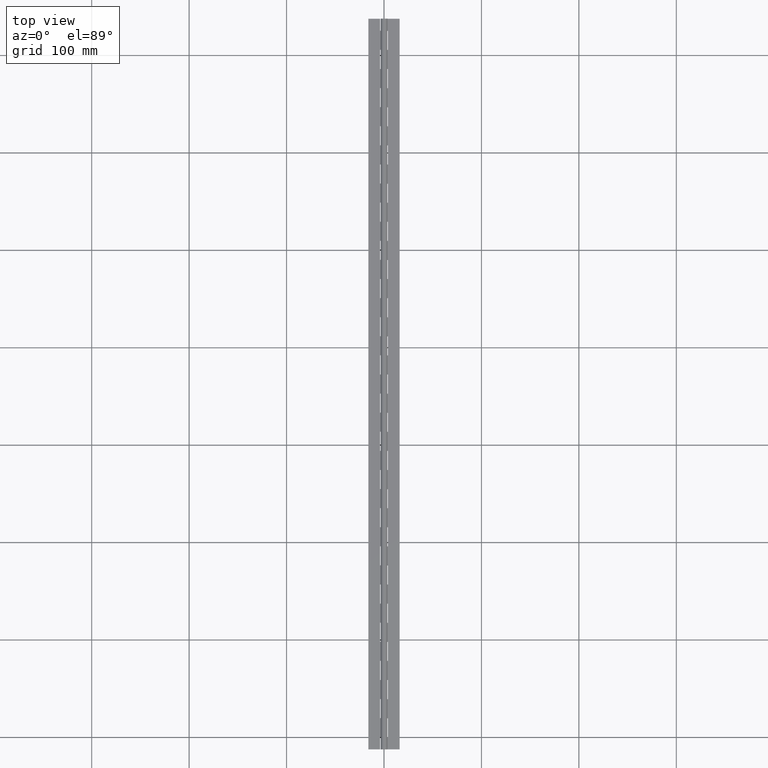
[diagram: clean part render]
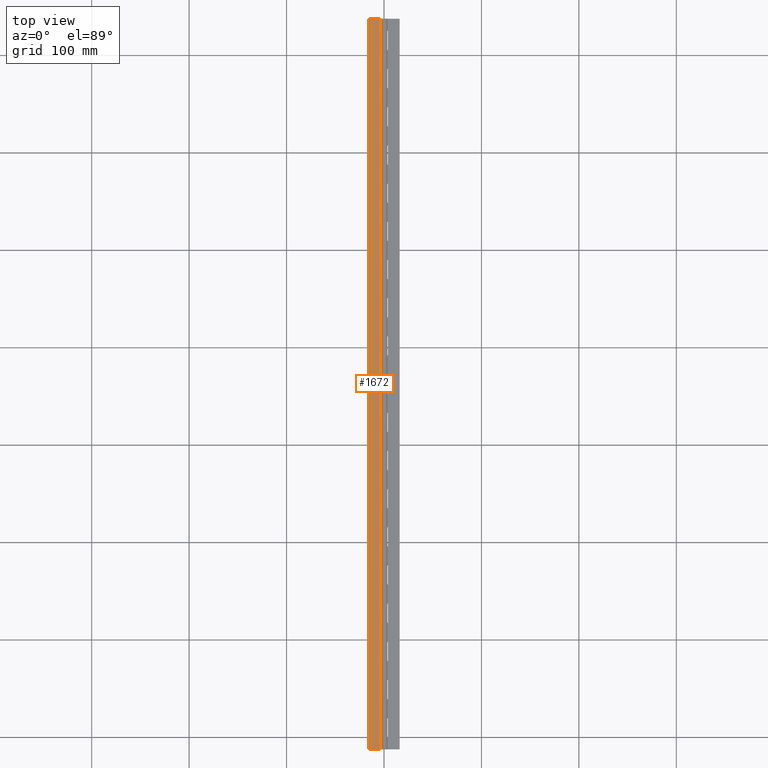
[diagram: same view with one face highlighted and labeled with its STEP entity id]
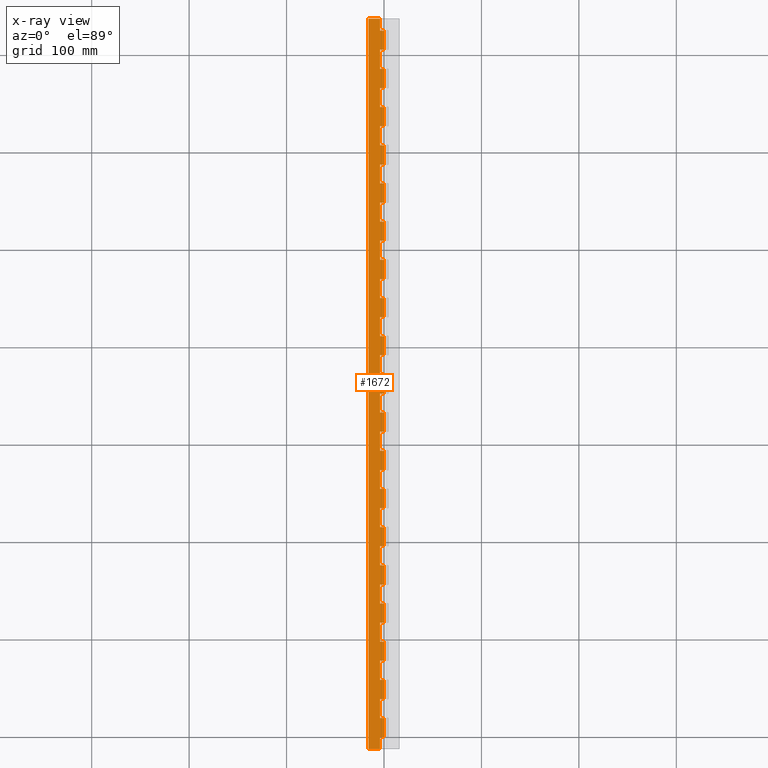
[diagram: x-ray of the same camera — body ghosted, the highlighted face saturated]
A machine part, top view. The second image highlights one B-rep face of the part: STEP entity #1672.
The next image is the same camera in x-ray: the body ghosted, the highlighted face saturated — about 0% of this face is hidden behind the body in this view.
In plain terms, the highlighted planar face has unit normal (-0, 0, -1).
Its self-contained STEP definition (entity closure, byte-faithful):
#2 = CARTESIAN_POINT ( 'NONE',  ( 0.0000000000000000000, 58.79999999999996200, -1.750000000000002400 ) ) ;
#29 = VECTOR ( 'NONE', #565, 1000.000000000000000 ) ;
#36 = LINE ( 'NONE', #8312, #7974 ) ;
#39 = CARTESIAN_POINT ( 'NONE',  ( -3.999999824594459200, 333.2000000000000500, -1.750000000000002200 ) ) ;
#59 = VERTEX_POINT ( 'NONE', #6160 ) ;
#78 = VERTEX_POINT ( 'NONE', #5895 ) ;
#86 = CARTESIAN_POINT ( 'NONE',  ( -3.999999824594461900, 117.6000000000000100, -1.750000000000002200 ) ) ;
#92 = CARTESIAN_POINT ( 'NONE',  ( 0.0000000000000000000, 19.59999999999995200, -1.750000546904256100 ) ) ;
#143 = ORIENTED_EDGE ( 'NONE', *, *, #6968, .T. ) ;
#162 = EDGE_CURVE ( 'NONE', #3038, #737, #7977, .T. ) ;
#251 = CARTESIAN_POINT ( 'NONE',  ( -3.999999824594461900, 156.8000000000000100, -1.750000000000002200 ) ) ;
#276 = EDGE_CURVE ( 'NONE', #1440, #4498, #2618, .T. ) ;
#301 = DIRECTION ( 'NONE',  ( -1.327594496921025700E-016, 1.000000000000000000, 1.619303460211448100E-032 ) ) ;
#308 = DIRECTION ( 'NONE',  ( -1.327594496921025700E-016, 1.000000000000000000, 1.619303460211448100E-032 ) ) ;
#309 = VERTEX_POINT ( 'NONE', #8284 ) ;
#332 = ORIENTED_EDGE ( 'NONE', *, *, #5174, .F. ) ;
#338 = VECTOR ( 'NONE', #3981, 1000.000000000000100 ) ;
#370 = DIRECTION ( 'NONE',  ( -1.327594496921025700E-016, 1.000000000000000000, 1.619303460211448100E-032 ) ) ;
#397 = CARTESIAN_POINT ( 'NONE',  ( 0.0000000000000000000, 352.8000000000000700, -1.750000000000002400 ) ) ;
#401 = EDGE_CURVE ( 'NONE', #870, #3880, #1021, .T. ) ;
#412 = EDGE_CURVE ( 'NONE', #78, #8190, #7867, .T. ) ;
#416 = ORIENTED_EDGE ( 'NONE', *, *, #4105, .F. ) ;
#417 = CARTESIAN_POINT ( 'NONE',  ( 0.0000000000000000000, 39.20000000000001000, -1.750000000000002400 ) ) ;
#418 = EDGE_CURVE ( 'NONE', #7127, #3068, #4220, .T. ) ;
#451 = ORIENTED_EDGE ( 'NONE', *, *, #7435, .T. ) ;
#505 = EDGE_CURVE ( 'NONE', #6313, #8044, #6848, .T. ) ;
#507 = CARTESIAN_POINT ( 'NONE',  ( -3.999999824594459200, 686.0000000000000000, -1.750000000000002200 ) ) ;
#523 = CARTESIAN_POINT ( 'NONE',  ( 2.143125705451388300E-016, 725.2000000000000500, -1.750000000000002400 ) ) ;
#524 = VECTOR ( 'NONE', #6797, 1000.000000000000000 ) ;
#541 = EDGE_CURVE ( 'NONE', #2538, #3606, #1513, .T. ) ;
#542 = ORIENTED_EDGE ( 'NONE', *, *, #1035, .F. ) ;
#562 = VECTOR ( 'NONE', #4045, 1000.000000000000000 ) ;
#564 = VERTEX_POINT ( 'NONE', #3544 ) ;
#565 = DIRECTION ( 'NONE',  ( -0.0000000000000000000, -1.000000000000000000, -0.0000000000000000000 ) ) ;
#580 = EDGE_CURVE ( 'NONE', #1131, #6048, #3003, .T. ) ;
#582 = CARTESIAN_POINT ( 'NONE',  ( 2.143132568272414800E-016, 0.0000000000000000000, -1.750000546904256100 ) ) ;
#605 = VECTOR ( 'NONE', #7972, 1000.000000000000000 ) ;
#608 = DIRECTION ( 'NONE',  ( 1.000000000000000000, 0.0000000000000000000, -1.219727457417876900E-016 ) ) ;
#614 = LINE ( 'NONE', #6228, #1903 ) ;
#635 = EDGE_CURVE ( 'NONE', #1811, #4023, #5637, .T. ) ;
#646 = EDGE_CURVE ( 'NONE', #3606, #5241, #7159, .T. ) ;
#698 = ORIENTED_EDGE ( 'NONE', *, *, #3600, .T. ) ;
#701 = CARTESIAN_POINT ( 'NONE',  ( 0.0000000000000000000, 196.0000000000000600, -1.750000000000002400 ) ) ;
#737 = VERTEX_POINT ( 'NONE', #6079 ) ;
#752 = VECTOR ( 'NONE', #2782, 1000.000000000000000 ) ;
#803 = CARTESIAN_POINT ( 'NONE',  ( -3.999999824594464600, 725.2000000000000500, -1.750000000000002000 ) ) ;
#808 = CARTESIAN_POINT ( 'NONE',  ( 2.143125705451388300E-016, 392.0000000000000600, -1.750000000000002400 ) ) ;
#852 = CARTESIAN_POINT ( 'NONE',  ( 0.0000000000000000000, 450.8000000000000700, -1.750000000000002400 ) ) ;
#864 = DIRECTION ( 'NONE',  ( -1.327594496921025700E-016, 1.000000000000000000, 1.619303460211448100E-032 ) ) ;
#870 = VERTEX_POINT ( 'NONE', #92 ) ;
#876 = DIRECTION ( 'NONE',  ( -0.0000000000000000000, -1.000000000000000000, -0.0000000000000000000 ) ) ;
#885 = EDGE_CURVE ( 'NONE', #3171, #564, #1906, .T. ) ;
#902 = LINE ( 'NONE', #2704, #1112 ) ;
#904 = ORIENTED_EDGE ( 'NONE', *, *, #412, .T. ) ;
#941 = CARTESIAN_POINT ( 'NONE',  ( 0.0000000000000000000, 490.0000000000000600, -1.750000000000002400 ) ) ;
#961 = VERTEX_POINT ( 'NONE', #582 ) ;
#965 = EDGE_CURVE ( 'NONE', #6037, #5995, #4512, .T. ) ;
#981 = ORIENTED_EDGE ( 'NONE', *, *, #4026, .F. ) ;
#986 = VERTEX_POINT ( 'NONE', #1929 ) ;
#995 = DIRECTION ( 'NONE',  ( -1.327594496921025700E-016, 1.000000000000000000, 1.619303460211448100E-032 ) ) ;
#1006 = VECTOR ( 'NONE', #7061, 1000.000000000000000 ) ;
#1009 = EDGE_CURVE ( 'NONE', #3534, #3930, #7560, .T. ) ;
#1015 = ORIENTED_EDGE ( 'NONE', *, *, #1798, .T. ) ;
#1021 = LINE ( 'NONE', #8314, #4414 ) ;
#1030 = ORIENTED_EDGE ( 'NONE', *, *, #4245, .T. ) ;
#1035 = EDGE_CURVE ( 'NONE', #7127, #3955, #902, .T. ) ;
#1052 = LINE ( 'NONE', #5211, #5961 ) ;
#1055 = DIRECTION ( 'NONE',  ( -0.0000000000000000000, -1.000000000000000000, -0.0000000000000000000 ) ) ;
#1076 = VERTEX_POINT ( 'NONE', #3456 ) ;
#1112 = VECTOR ( 'NONE', #2652, 1000.000000000000000 ) ;
#1119 = LINE ( 'NONE', #3864, #5827 ) ;
#1129 = LINE ( 'NONE', #852, #6034 ) ;
#1131 = VERTEX_POINT ( 'NONE', #6020 ) ;
#1141 = CARTESIAN_POINT ( 'NONE',  ( -3.999999824594459200, 646.8000000000000700, -1.750000000000002200 ) ) ;
#1166 = VERTEX_POINT ( 'NONE', #5372 ) ;
#1169 = CARTESIAN_POINT ( 'NONE',  ( 2.143132568272414800E-016, 725.2000000000000500, -1.750000546904256100 ) ) ;
#1181 = CARTESIAN_POINT ( 'NONE',  ( -15.99999982459446300, 725.2000000000000500, -1.750000000000000400 ) ) ;
#1187 = VECTOR ( 'NONE', #6118, 1000.000000000000000 ) ;
#1192 = CARTESIAN_POINT ( 'NONE',  ( 0.0000000000000000000, 0.0000000000000000000, -1.750000000000002400 ) ) ;
#1212 = ORIENTED_EDGE ( 'NONE', *, *, #2205, .T. ) ;
#1220 = LINE ( 'NONE', #417, #2908 ) ;
#1221 = CARTESIAN_POINT ( 'NONE',  ( 2.143125705451388300E-016, 78.40000000000002000, -1.750000000000002400 ) ) ;
#1231 = EDGE_CURVE ( 'NONE', #3880, #986, #2506, .T. ) ;
#1232 = ORIENTED_EDGE ( 'NONE', *, *, #162, .T. ) ;
#1252 = CARTESIAN_POINT ( 'NONE',  ( -3.999999824594459200, 19.60000000000000100, -1.750000000000002200 ) ) ;
#1295 = VERTEX_POINT ( 'NONE', #2467 ) ;
#1315 = VECTOR ( 'NONE', #2664, 1000.000000000000000 ) ;
#1320 = VECTOR ( 'NONE', #2093, 1000.000000000000000 ) ;
#1326 = LINE ( 'NONE', #8058, #1519 ) ;
#1330 = DIRECTION ( 'NONE',  ( -0.0000000000000000000, -1.000000000000000000, -0.0000000000000000000 ) ) ;
#1341 = DIRECTION ( 'NONE',  ( 1.000000000000000000, 0.0000000000000000000, -1.219727457417876900E-016 ) ) ;
#1352 = DIRECTION ( 'NONE',  ( -1.000000000000000000, 0.0000000000000000000, 1.219727457417876900E-016 ) ) ;
#1353 = VECTOR ( 'NONE', #6179, 1000.000000000000000 ) ;
#1374 = DIRECTION ( 'NONE',  ( 1.000000000000000000, 0.0000000000000000000, -1.219727457417876900E-016 ) ) ;
#1388 = CARTESIAN_POINT ( 'NONE',  ( -3.999999824594459200, 58.80000000000000400, -1.750000000000002200 ) ) ;
#1390 = VECTOR ( 'NONE', #864, 1000.000000000000000 ) ;
#1414 = CARTESIAN_POINT ( 'NONE',  ( 0.0000000000000000000, 313.6000000000000200, -1.750000000000002400 ) ) ;
#1428 = ORIENTED_EDGE ( 'NONE', *, *, #5521, .T. ) ;
#1431 = CARTESIAN_POINT ( 'NONE',  ( -3.999999824594461900, 627.2000000000000500, -1.750000000000002200 ) ) ;
#1440 = VERTEX_POINT ( 'NONE', #2282 ) ;
#1442 = DIRECTION ( 'NONE',  ( -1.000000000000000000, 0.0000000000000000000, 1.219727457417876900E-016 ) ) ;
#1446 = CARTESIAN_POINT ( 'NONE',  ( 2.143125705451388300E-016, 588.0000000000001100, -1.750000000000002400 ) ) ;
#1460 = ORIENTED_EDGE ( 'NONE', *, *, #7094, .T. ) ;
#1463 = EDGE_CURVE ( 'NONE', #8218, #4281, #5815, .T. ) ;
#1466 = DIRECTION ( 'NONE',  ( 1.000000000000000000, 0.0000000000000000000, -1.219727457417876900E-016 ) ) ;
#1497 = DIRECTION ( 'NONE',  ( -1.000000000000000000, 0.0000000000000000000, 1.219727457417876900E-016 ) ) ;
#1512 = VECTOR ( 'NONE', #608, 1000.000000000000000 ) ;
#1513 = LINE ( 'NONE', #803, #1320 ) ;
#1519 = VECTOR ( 'NONE', #4840, 1000.000000000000000 ) ;
#1526 = LINE ( 'NONE', #5943, #6451 ) ;
#1544 = LINE ( 'NONE', #2957, #3436 ) ;
#1547 = CARTESIAN_POINT ( 'NONE',  ( 2.143125705451388300E-016, 176.4000000000000100, -1.750000000000002400 ) ) ;
#1565 = CARTESIAN_POINT ( 'NONE',  ( 2.143125705451388300E-016, 235.2000000000000700, -1.750000000000002400 ) ) ;
#1573 = CARTESIAN_POINT ( 'NONE',  ( -3.999999824594459200, 529.2000000000000500, -1.750000000000002200 ) ) ;
#1596 = PLANE ( 'NONE',  #2840 ) ;
#1610 = VECTOR ( 'NONE', #370, 1000.000000000000000 ) ;
#1612 = CARTESIAN_POINT ( 'NONE',  ( 2.143125705451388300E-016, 607.6000000000000200, -1.750000000000002400 ) ) ;
#1615 = LINE ( 'NONE', #5474, #3116 ) ;
#1619 = ORIENTED_EDGE ( 'NONE', *, *, #3652, .T. ) ;
#1630 = CARTESIAN_POINT ( 'NONE',  ( 0.0000000000000000000, 666.4000000000000900, -1.750000000000002400 ) ) ;
#1648 = VECTOR ( 'NONE', #7373, 1000.000000000000000 ) ;
#1669 = ORIENTED_EDGE ( 'NONE', *, *, #1993, .T. ) ;
#1672 = ADVANCED_FACE ( 'NONE', ( #2690 ), #1596, .F. ) ;
#1689 = CARTESIAN_POINT ( 'NONE',  ( -3.999999824594461900, 470.4000000000000900, -1.750000000000002200 ) ) ;
#1690 = EDGE_CURVE ( 'NONE', #1076, #5882, #3787, .T. ) ;
#1695 = EDGE_CURVE ( 'NONE', #1802, #2538, #5505, .T. ) ;
#1728 = VERTEX_POINT ( 'NONE', #7265 ) ;
#1734 = DIRECTION ( 'NONE',  ( -0.0000000000000000000, -1.000000000000000000, -0.0000000000000000000 ) ) ;
#1736 = CARTESIAN_POINT ( 'NONE',  ( 2.143125705451388300E-016, 254.8000000000000400, -1.750000000000002400 ) ) ;
#1759 = CARTESIAN_POINT ( 'NONE',  ( -3.999999824594526700, 725.2000000000000500, -1.750000000000002000 ) ) ;
#1798 = EDGE_CURVE ( 'NONE', #5274, #4094, #2980, .T. ) ;
#1802 = VERTEX_POINT ( 'NONE', #4432 ) ;
#1805 = CARTESIAN_POINT ( 'NONE',  ( -3.999999824594459200, 294.0000000000000600, -1.750000000000002200 ) ) ;
#1811 = VERTEX_POINT ( 'NONE', #251 ) ;
#1846 = CARTESIAN_POINT ( 'NONE',  ( 2.143125705451388300E-016, 411.6000000000000800, -1.750000000000002400 ) ) ;
#1903 = VECTOR ( 'NONE', #1734, 1000.000000000000000 ) ;
#1906 = LINE ( 'NONE', #701, #5129 ) ;
#1907 = ORIENTED_EDGE ( 'NONE', *, *, #4200, .T. ) ;
#1929 = CARTESIAN_POINT ( 'NONE',  ( -3.999999824594461900, 39.20000000000000300, -1.750000000000002200 ) ) ;
#1943 = CARTESIAN_POINT ( 'NONE',  ( 2.143132568272414800E-016, 725.2000000000000500, -1.750000546904256100 ) ) ;
#1964 = DIRECTION ( 'NONE',  ( 1.000000000000000000, 0.0000000000000000000, -1.219727457417876900E-016 ) ) ;
#1975 = DIRECTION ( 'NONE',  ( -1.000000000000000000, 0.0000000000000000000, 1.219727457417876900E-016 ) ) ;
#1991 = CARTESIAN_POINT ( 'NONE',  ( 2.143132568272414800E-016, 39.20000000000001000, -1.750000546904256100 ) ) ;
#1993 = EDGE_CURVE ( 'NONE', #6801, #78, #3076, .T. ) ;
#2007 = CARTESIAN_POINT ( 'NONE',  ( -3.999999824594501000, 725.2000000000000500, -1.750000000000002000 ) ) ;
#2009 = ORIENTED_EDGE ( 'NONE', *, *, #885, .T. ) ;
#2024 = CARTESIAN_POINT ( 'NONE',  ( 0.0000000000000000000, 137.1999999999999900, -1.750000000000002400 ) ) ;
#2028 = ORIENTED_EDGE ( 'NONE', *, *, #418, .T. ) ;
#2039 = LINE ( 'NONE', #3223, #6980 ) ;
#2043 = CARTESIAN_POINT ( 'NONE',  ( 0.0000000000000000000, 607.6000000000000200, -1.750000000000002400 ) ) ;
#2046 = EDGE_CURVE ( 'NONE', #2989, #6412, #2882, .T. ) ;
#2048 = CARTESIAN_POINT ( 'NONE',  ( 2.143132568272414800E-016, 725.2000000000000500, -1.750000546904256100 ) ) ;
#2053 = DIRECTION ( 'NONE',  ( 1.000000000000000000, 0.0000000000000000000, -1.219727457417876900E-016 ) ) ;
#2071 = VERTEX_POINT ( 'NONE', #5517 ) ;
#2081 = DIRECTION ( 'NONE',  ( -0.0000000000000000000, -1.000000000000000000, -0.0000000000000000000 ) ) ;
#2091 = VECTOR ( 'NONE', #5870, 1000.000000000000000 ) ;
#2093 = DIRECTION ( 'NONE',  ( -1.327594496921025700E-016, 1.000000000000000000, 1.619303460211448100E-032 ) ) ;
#2094 = DIRECTION ( 'NONE',  ( -1.327594496921025700E-016, 1.000000000000000000, 1.619303460211448100E-032 ) ) ;
#2103 = DIRECTION ( 'NONE',  ( 1.000000000000000000, 0.0000000000000000000, -1.219727457417876900E-016 ) ) ;
#2135 = ORIENTED_EDGE ( 'NONE', *, *, #7741, .T. ) ;
#2154 = LINE ( 'NONE', #2959, #2556 ) ;
#2163 = CARTESIAN_POINT ( 'NONE',  ( 2.143132568272414800E-016, 725.2000000000000500, -1.750000546904256100 ) ) ;
#2166 = CARTESIAN_POINT ( 'NONE',  ( -3.999999824594459200, 411.6000000000000800, -1.750000000000002200 ) ) ;
#2176 = EDGE_CURVE ( 'NONE', #6313, #3534, #3945, .T. ) ;
#2184 = CARTESIAN_POINT ( 'NONE',  ( 0.0000000000000000000, 176.4000000000000100, -1.750000000000002400 ) ) ;
#2200 = VERTEX_POINT ( 'NONE', #4015 ) ;
#2205 = EDGE_CURVE ( 'NONE', #6409, #2071, #5460, .T. ) ;
#2214 = ORIENTED_EDGE ( 'NONE', *, *, #4096, .T. ) ;
#2217 = EDGE_CURVE ( 'NONE', #4603, #2244, #2646, .T. ) ;
#2229 = VECTOR ( 'NONE', #7350, 1000.000000000000000 ) ;
#2244 = VERTEX_POINT ( 'NONE', #4067 ) ;
#2245 = VERTEX_POINT ( 'NONE', #4733 ) ;
#2256 = VECTOR ( 'NONE', #3358, 1000.000000000000000 ) ;
#2281 = DIRECTION ( 'NONE',  ( 1.000000000000000000, 0.0000000000000000000, -1.219727457417876900E-016 ) ) ;
#2282 = CARTESIAN_POINT ( 'NONE',  ( -15.99999982459446300, 737.6000000000000200, -1.750000000000000400 ) ) ;
#2319 = VECTOR ( 'NONE', #3021, 1000.000000000000000 ) ;
#2337 = ORIENTED_EDGE ( 'NONE', *, *, #8233, .F. ) ;
#2351 = VECTOR ( 'NONE', #1374, 1000.000000000000000 ) ;
#2382 = VERTEX_POINT ( 'NONE', #5479 ) ;
#2401 = CARTESIAN_POINT ( 'NONE',  ( 0.0000000000000000000, 568.3999999999999800, -1.750000000000002400 ) ) ;
#2431 = ORIENTED_EDGE ( 'NONE', *, *, #1231, .T. ) ;
#2462 = ORIENTED_EDGE ( 'NONE', *, *, #4960, .F. ) ;
#2467 = CARTESIAN_POINT ( 'NONE',  ( 2.143125705451388300E-016, 274.4000000000000300, -1.750000000000002400 ) ) ;
#2506 = LINE ( 'NONE', #6730, #1006 ) ;
#2517 = LINE ( 'NONE', #4954, #2319 ) ;
#2518 = VECTOR ( 'NONE', #1341, 1000.000000000000000 ) ;
#2528 = EDGE_CURVE ( 'NONE', #1802, #4471, #6662, .T. ) ;
#2530 = ORIENTED_EDGE ( 'NONE', *, *, #635, .T. ) ;
#2531 = VERTEX_POINT ( 'NONE', #1805 ) ;
#2537 = ORIENTED_EDGE ( 'NONE', *, *, #276, .F. ) ;
#2538 = VERTEX_POINT ( 'NONE', #507 ) ;
#2539 = DIRECTION ( 'NONE',  ( -1.000000000000000000, 0.0000000000000000000, 1.219727457417876900E-016 ) ) ;
#2542 = VECTOR ( 'NONE', #2742, 1000.000000000000000 ) ;
#2543 = LINE ( 'NONE', #7768, #6170 ) ;
#2556 = VECTOR ( 'NONE', #7502, 1000.000000000000000 ) ;
#2566 = EDGE_CURVE ( 'NONE', #2382, #8050, #6468, .T. ) ;
#2574 = ORIENTED_EDGE ( 'NONE', *, *, #1463, .F. ) ;
#2612 = CARTESIAN_POINT ( 'NONE',  ( -3.999999824594461900, 666.4000000000000900, -1.750000000000002200 ) ) ;
#2618 = LINE ( 'NONE', #3109, #338 ) ;
#2646 = LINE ( 'NONE', #3389, #562 ) ;
#2652 = DIRECTION ( 'NONE',  ( -0.0000000000000000000, -1.000000000000000000, -0.0000000000000000000 ) ) ;
#2662 = ORIENTED_EDGE ( 'NONE', *, *, #2566, .T. ) ;
#2664 = DIRECTION ( 'NONE',  ( -1.327594496921025700E-016, 1.000000000000000000, 1.619303460211448100E-032 ) ) ;
#2667 = EDGE_CURVE ( 'NONE', #2531, #7822, #2039, .T. ) ;
#2674 = VERTEX_POINT ( 'NONE', #2612 ) ;
#2685 = VERTEX_POINT ( 'NONE', #4556 ) ;
#2690 = FACE_OUTER_BOUND ( 'NONE', #5593, .T. ) ;
#2704 = CARTESIAN_POINT ( 'NONE',  ( 2.143132568272414800E-016, 725.2000000000000500, -1.750000546904256100 ) ) ;
#2723 = ORIENTED_EDGE ( 'NONE', *, *, #7902, .F. ) ;
#2726 = VECTOR ( 'NONE', #6069, 1000.000000000000000 ) ;
#2742 = DIRECTION ( 'NONE',  ( -1.327594496921025700E-016, 1.000000000000000000, 1.619303460211448100E-032 ) ) ;
#2744 = LINE ( 'NONE', #6128, #4258 ) ;
#2749 = EDGE_CURVE ( 'NONE', #7822, #6412, #6557, .T. ) ;
#2782 = DIRECTION ( 'NONE',  ( -1.327594496921025700E-016, 1.000000000000000000, 1.619303460211448100E-032 ) ) ;
#2794 = VECTOR ( 'NONE', #6910, 1000.000000000000000 ) ;
#2799 = LINE ( 'NONE', #6513, #1315 ) ;
#2801 = VECTOR ( 'NONE', #3392, 1000.000000000000000 ) ;
#2810 = EDGE_CURVE ( 'NONE', #8120, #1811, #7695, .T. ) ;
#2812 = VECTOR ( 'NONE', #1466, 1000.000000000000000 ) ;
#2819 = CARTESIAN_POINT ( 'NONE',  ( -3.999999824594521900, 725.2000000000000500, -1.750000000000002000 ) ) ;
#2840 = AXIS2_PLACEMENT_3D ( 'NONE', #4808, #4488, #3494 ) ;
#2842 = ORIENTED_EDGE ( 'NONE', *, *, #7000, .T. ) ;
#2843 = DIRECTION ( 'NONE',  ( 1.000000000000000000, 0.0000000000000000000, -1.219727457417876900E-016 ) ) ;
#2862 = CARTESIAN_POINT ( 'NONE',  ( -3.999999824594461900, 705.6000000000001400, -1.750000000000002200 ) ) ;
#2876 = EDGE_CURVE ( 'NONE', #7412, #3038, #5761, .T. ) ;
#2879 = ORIENTED_EDGE ( 'NONE', *, *, #1690, .F. ) ;
#2882 = LINE ( 'NONE', #4777, #1187 ) ;
#2886 = CARTESIAN_POINT ( 'NONE',  ( -3.999999824594461900, 274.4000000000000300, -1.750000000000002200 ) ) ;
#2889 = VERTEX_POINT ( 'NONE', #4377 ) ;
#2897 = CARTESIAN_POINT ( 'NONE',  ( 0.0000000000000000000, 156.8000000000000400, -1.750000000000002400 ) ) ;
#2901 = DIRECTION ( 'NONE',  ( -0.9999999999999994400, -0.0000000000000000000, 3.418151635014737200E-008 ) ) ;
#2908 = VECTOR ( 'NONE', #4892, 1000.000000000000000 ) ;
#2912 = VERTEX_POINT ( 'NONE', #3755 ) ;
#2914 = VECTOR ( 'NONE', #5503, 1000.000000000000000 ) ;
#2957 = CARTESIAN_POINT ( 'NONE',  ( 0.0000000000000000000, 646.8000000000000700, -1.750000000000002400 ) ) ;
#2959 = CARTESIAN_POINT ( 'NONE',  ( 0.0000000000000000000, 470.4000000000000900, -1.750000000000002400 ) ) ;
#2980 = LINE ( 'NONE', #3810, #4909 ) ;
#2985 = DIRECTION ( 'NONE',  ( -1.327594496921025700E-016, 1.000000000000000000, 1.619303460211448100E-032 ) ) ;
#2989 = VERTEX_POINT ( 'NONE', #3847 ) ;
#3003 = LINE ( 'NONE', #3455, #2801 ) ;
#3009 = EDGE_CURVE ( 'NONE', #1076, #7281, #4546, .T. ) ;
#3017 = VECTOR ( 'NONE', #2103, 1000.000000000000000 ) ;
#3021 = DIRECTION ( 'NONE',  ( 1.000000000000000000, 0.0000000000000000000, -1.219727457417876900E-016 ) ) ;
#3030 = EDGE_CURVE ( 'NONE', #2244, #4498, #6051, .T. ) ;
#3038 = VERTEX_POINT ( 'NONE', #86 ) ;
#3050 = ORIENTED_EDGE ( 'NONE', *, *, #541, .T. ) ;
#3064 = DIRECTION ( 'NONE',  ( -1.000000000000000000, 0.0000000000000000000, 1.219727457417876900E-016 ) ) ;
#3066 = CARTESIAN_POINT ( 'NONE',  ( -3.999999824594461900, 588.0000000000001100, -1.750000000000002200 ) ) ;
#3068 = VERTEX_POINT ( 'NONE', #1388 ) ;
#3069 = ORIENTED_EDGE ( 'NONE', *, *, #2176, .T. ) ;
#3076 = LINE ( 'NONE', #4792, #1390 ) ;
#3077 = ORIENTED_EDGE ( 'NONE', *, *, #3338, .T. ) ;
#3084 = DIRECTION ( 'NONE',  ( -1.327594496921025700E-016, 1.000000000000000000, 1.619303460211448100E-032 ) ) ;
#3096 = ORIENTED_EDGE ( 'NONE', *, *, #5965, .T. ) ;
#3105 = ORIENTED_EDGE ( 'NONE', *, *, #2046, .F. ) ;
#3108 = VECTOR ( 'NONE', #6946, 1000.000000000000000 ) ;
#3109 = CARTESIAN_POINT ( 'NONE',  ( -15.99999982459446300, 737.6000000000000200, -1.750000000000000400 ) ) ;
#3116 = VECTOR ( 'NONE', #995, 1000.000000000000000 ) ;
#3118 = VECTOR ( 'NONE', #4609, 1000.000000000000000 ) ;
#3133 = CARTESIAN_POINT ( 'NONE',  ( 0.0000000000000000000, 431.2000000000001000, -1.750000000000002400 ) ) ;
#3149 = LINE ( 'NONE', #6035, #8110 ) ;
#3171 = VERTEX_POINT ( 'NONE', #7303 ) ;
#3188 = EDGE_CURVE ( 'NONE', #2245, #8190, #3315, .T. ) ;
#3203 = LINE ( 'NONE', #3133, #1512 ) ;
#3223 = CARTESIAN_POINT ( 'NONE',  ( -3.999999824594516500, 725.2000000000000500, -1.750000000000002000 ) ) ;
#3240 = EDGE_CURVE ( 'NONE', #7281, #5293, #4645, .T. ) ;
#3249 = VECTOR ( 'NONE', #6526, 1000.000000000000000 ) ;
#3289 = EDGE_CURVE ( 'NONE', #2674, #4471, #7276, .T. ) ;
#3294 = CARTESIAN_POINT ( 'NONE',  ( 2.143132568272414800E-016, 725.2000000000000500, -1.750000546904256100 ) ) ;
#3301 = LINE ( 'NONE', #6097, #1610 ) ;
#3315 = LINE ( 'NONE', #2163, #8086 ) ;
#3338 = EDGE_CURVE ( 'NONE', #5293, #8044, #3824, .T. ) ;
#3358 = DIRECTION ( 'NONE',  ( -1.000000000000000000, 0.0000000000000000000, 1.219727457417876900E-016 ) ) ;
#3386 = ORIENTED_EDGE ( 'NONE', *, *, #5214, .T. ) ;
#3389 = CARTESIAN_POINT ( 'NONE',  ( 0.0000000000000000000, 725.2000000000000500, -1.750000000000002400 ) ) ;
#3390 = VECTOR ( 'NONE', #8219, 1000.000000000000000 ) ;
#3392 = DIRECTION ( 'NONE',  ( -0.0000000000000000000, -1.000000000000000000, -0.0000000000000000000 ) ) ;
#3429 = CARTESIAN_POINT ( 'NONE',  ( -3.999999824594459200, 137.2000000000000200, -1.750000000000002200 ) ) ;
#3436 = VECTOR ( 'NONE', #7501, 1000.000000000000000 ) ;
#3455 = CARTESIAN_POINT ( 'NONE',  ( 2.143132568272414800E-016, 725.2000000000000500, -1.750000546904256100 ) ) ;
#3456 = CARTESIAN_POINT ( 'NONE',  ( 2.143125705451388300E-016, 372.4000000000000900, -1.750000000000002400 ) ) ;
#3486 = CARTESIAN_POINT ( 'NONE',  ( 0.0000000000000000000, 215.6000000000000200, -1.750000000000002400 ) ) ;
#3494 = DIRECTION ( 'NONE',  ( -1.000000000000000000, 0.0000000000000000000, 1.219727457417876900E-016 ) ) ;
#3502 = LINE ( 'NONE', #7202, #3249 ) ;
#3515 = CARTESIAN_POINT ( 'NONE',  ( 2.143125705451388300E-016, 509.6000000000000800, -1.750000000000002400 ) ) ;
#3534 = VERTEX_POINT ( 'NONE', #2166 ) ;
#3544 = CARTESIAN_POINT ( 'NONE',  ( 2.143125705451388300E-016, 196.0000000000000600, -1.750000000000002400 ) ) ;
#3562 = ORIENTED_EDGE ( 'NONE', *, *, #3938, .F. ) ;
#3570 = ORIENTED_EDGE ( 'NONE', *, *, #2749, .T. ) ;
#3594 = VERTEX_POINT ( 'NONE', #1573 ) ;
#3600 = EDGE_CURVE ( 'NONE', #2200, #6801, #5233, .T. ) ;
#3604 = LINE ( 'NONE', #5004, #4925 ) ;
#3606 = VERTEX_POINT ( 'NONE', #2862 ) ;
#3611 = CARTESIAN_POINT ( 'NONE',  ( 2.143125705451388300E-016, 705.6000000000001400, -1.750000000000002400 ) ) ;
#3632 = ORIENTED_EDGE ( 'NONE', *, *, #6906, .T. ) ;
#3652 = EDGE_CURVE ( 'NONE', #2685, #6929, #6537, .T. ) ;
#3661 = EDGE_CURVE ( 'NONE', #6885, #3171, #1615, .T. ) ;
#3674 = EDGE_CURVE ( 'NONE', #2071, #5882, #8079, .T. ) ;
#3742 = VECTOR ( 'NONE', #6602, 1000.000000000000000 ) ;
#3748 = LINE ( 'NONE', #3486, #1648 ) ;
#3754 = DIRECTION ( 'NONE',  ( 1.000000000000000000, 0.0000000000000000000, -1.219727457417876900E-016 ) ) ;
#3755 = CARTESIAN_POINT ( 'NONE',  ( 2.143125705451388300E-016, 470.4000000000000900, -1.750000000000002400 ) ) ;
#3765 = CARTESIAN_POINT ( 'NONE',  ( -3.999999824594461900, 313.6000000000000200, -1.750000000000002200 ) ) ;
#3773 = VERTEX_POINT ( 'NONE', #1141 ) ;
#3781 = DIRECTION ( 'NONE',  ( -1.327594496921025700E-016, 1.000000000000000000, 1.619303460211448100E-032 ) ) ;
#3787 = LINE ( 'NONE', #4146, #2091 ) ;
#3810 = CARTESIAN_POINT ( 'NONE',  ( 0.0000000000000000000, 254.8000000000000400, -1.750000000000002400 ) ) ;
#3824 = LINE ( 'NONE', #6159, #5335 ) ;
#3847 = CARTESIAN_POINT ( 'NONE',  ( 2.143125705451388300E-016, 333.2000000000000500, -1.750000000000002400 ) ) ;
#3864 = CARTESIAN_POINT ( 'NONE',  ( -3.999999824594615600, 725.2000000000000500, -1.750000000000002000 ) ) ;
#3880 = VERTEX_POINT ( 'NONE', #1252 ) ;
#3895 = CARTESIAN_POINT ( 'NONE',  ( -3.999999824594459200, 725.2000000000000500, -1.750000000000002000 ) ) ;
#3930 = VERTEX_POINT ( 'NONE', #4484 ) ;
#3938 = EDGE_CURVE ( 'NONE', #2889, #6649, #7570, .T. ) ;
#3945 = LINE ( 'NONE', #5282, #2256 ) ;
#3946 = CARTESIAN_POINT ( 'NONE',  ( 2.143125705451388300E-016, 156.8000000000000400, -1.750000000000002400 ) ) ;
#3954 = ORIENTED_EDGE ( 'NONE', *, *, #2528, .F. ) ;
#3955 = VERTEX_POINT ( 'NONE', #1991 ) ;
#3961 = ORIENTED_EDGE ( 'NONE', *, *, #7720, .F. ) ;
#3981 = DIRECTION ( 'NONE',  ( 0.9999999999999994400, 0.0000000000000000000, -3.418151635014737200E-008 ) ) ;
#4007 = CARTESIAN_POINT ( 'NONE',  ( -3.999999824594537400, 725.2000000000000500, -1.750000000000002000 ) ) ;
#4015 = CARTESIAN_POINT ( 'NONE',  ( 2.143125705451388300E-016, 490.0000000000000600, -1.750000000000002400 ) ) ;
#4023 = VERTEX_POINT ( 'NONE', #3946 ) ;
#4026 = EDGE_CURVE ( 'NONE', #5274, #7555, #7077, .T. ) ;
#4030 = ORIENTED_EDGE ( 'NONE', *, *, #4658, .T. ) ;
#4045 = DIRECTION ( 'NONE',  ( -1.000000000000000000, 0.0000000000000000000, 1.219727457417876900E-016 ) ) ;
#4067 = CARTESIAN_POINT ( 'NONE',  ( -3.999999824594459200, 725.2000000000000500, -1.750000000000002200 ) ) ;
#4090 = ORIENTED_EDGE ( 'NONE', *, *, #505, .F. ) ;
#4092 = ORIENTED_EDGE ( 'NONE', *, *, #7203, .T. ) ;
#4094 = VERTEX_POINT ( 'NONE', #6565 ) ;
#4096 = EDGE_CURVE ( 'NONE', #5153, #1295, #4744, .T. ) ;
#4105 = EDGE_CURVE ( 'NONE', #8238, #1295, #1526, .T. ) ;
#4146 = CARTESIAN_POINT ( 'NONE',  ( 2.143132568272414800E-016, 725.2000000000000500, -1.750000546904256100 ) ) ;
#4156 = LINE ( 'NONE', #7928, #752 ) ;
#4169 = ORIENTED_EDGE ( 'NONE', *, *, #8112, .T. ) ;
#4200 = EDGE_CURVE ( 'NONE', #5118, #6885, #5653, .T. ) ;
#4207 = DIRECTION ( 'NONE',  ( 1.000000000000000000, 0.0000000000000000000, -1.219727457417876900E-016 ) ) ;
#4214 = EDGE_CURVE ( 'NONE', #4094, #5153, #5845, .T. ) ;
#4220 = LINE ( 'NONE', #2, #7470 ) ;
#4233 = CARTESIAN_POINT ( 'NONE',  ( 2.143125705451388300E-016, 97.99999999999997200, -1.750000000000002400 ) ) ;
#4245 = EDGE_CURVE ( 'NONE', #7152, #8120, #4847, .T. ) ;
#4254 = EDGE_CURVE ( 'NONE', #4603, #5241, #4329, .T. ) ;
#4258 = VECTOR ( 'NONE', #5471, 1000.000000000000000 ) ;
#4281 = VERTEX_POINT ( 'NONE', #1446 ) ;
#4298 = VECTOR ( 'NONE', #2081, 1000.000000000000000 ) ;
#4308 = CARTESIAN_POINT ( 'NONE',  ( -3.999999824594461900, 235.2000000000000500, -1.750000000000002200 ) ) ;
#4329 = LINE ( 'NONE', #6514, #3118 ) ;
#4336 = VECTOR ( 'NONE', #7784, 1000.000000000000000 ) ;
#4348 = DIRECTION ( 'NONE',  ( 1.000000000000000000, 0.0000000000000000000, -1.219727457417876900E-016 ) ) ;
#4377 = CARTESIAN_POINT ( 'NONE',  ( 2.143125705451388300E-016, 646.8000000000000700, -1.750000000000002400 ) ) ;
#4379 = ORIENTED_EDGE ( 'NONE', *, *, #3009, .T. ) ;
#4414 = VECTOR ( 'NONE', #2539, 1000.000000000000000 ) ;
#4432 = CARTESIAN_POINT ( 'NONE',  ( 2.143125705451388300E-016, 686.0000000000000000, -1.750000000000002400 ) ) ;
#4439 = ORIENTED_EDGE ( 'NONE', *, *, #2217, .T. ) ;
#4461 = EDGE_CURVE ( 'NONE', #870, #961, #1326, .T. ) ;
#4465 = CARTESIAN_POINT ( 'NONE',  ( 0.0000000000000000000, 509.6000000000000800, -1.750000000000002400 ) ) ;
#4471 = VERTEX_POINT ( 'NONE', #4866 ) ;
#4484 = CARTESIAN_POINT ( 'NONE',  ( -3.999999824594461900, 431.2000000000001000, -1.750000000000002200 ) ) ;
#4488 = DIRECTION ( 'NONE',  ( -1.219727457417876900E-016, 0.0000000000000000000, -1.000000000000000000 ) ) ;
#4498 = VERTEX_POINT ( 'NONE', #5529 ) ;
#4499 = CARTESIAN_POINT ( 'NONE',  ( 2.143125705451388300E-016, 313.6000000000000200, -1.750000000000002400 ) ) ;
#4507 = CARTESIAN_POINT ( 'NONE',  ( 2.143132568272414800E-016, 725.2000000000000500, -1.750000546904256100 ) ) ;
#4512 = LINE ( 'NONE', #2401, #2794 ) ;
#4515 = DIRECTION ( 'NONE',  ( -2.098455817713880300E-016, 1.000000000000000000, 2.559544179043902700E-032 ) ) ;
#4546 = LINE ( 'NONE', #5819, #6258 ) ;
#4556 = CARTESIAN_POINT ( 'NONE',  ( -3.999999824594461900, 78.40000000000000600, -1.750000000000002200 ) ) ;
#4595 = CARTESIAN_POINT ( 'NONE',  ( 0.0000000000000000000, 627.2000000000000500, -1.750000000000002400 ) ) ;
#4603 = VERTEX_POINT ( 'NONE', #523 ) ;
#4609 = DIRECTION ( 'NONE',  ( -0.0000000000000000000, -1.000000000000000000, -0.0000000000000000000 ) ) ;
#4624 = CARTESIAN_POINT ( 'NONE',  ( 2.143125705451388300E-016, 568.3999999999999800, -1.750000000000002400 ) ) ;
#4639 = VECTOR ( 'NONE', #1055, 1000.000000000000000 ) ;
#4641 = ORIENTED_EDGE ( 'NONE', *, *, #2876, .T. ) ;
#4645 = LINE ( 'NONE', #8007, #2726 ) ;
#4658 = EDGE_CURVE ( 'NONE', #1440, #4729, #4837, .T. ) ;
#4664 = VECTOR ( 'NONE', #2901, 1000.000000000000100 ) ;
#4727 = LINE ( 'NONE', #3294, #7762 ) ;
#4729 = VERTEX_POINT ( 'NONE', #5117 ) ;
#4733 = CARTESIAN_POINT ( 'NONE',  ( 2.143125705451388300E-016, 529.2000000000000500, -1.750000000000002400 ) ) ;
#4744 = LINE ( 'NONE', #5297, #3017 ) ;
#4777 = CARTESIAN_POINT ( 'NONE',  ( 2.143132568272414800E-016, 725.2000000000000500, -1.750000546904256100 ) ) ;
#4792 = CARTESIAN_POINT ( 'NONE',  ( -3.999999824594490300, 725.2000000000000500, -1.750000000000002000 ) ) ;
#4808 = CARTESIAN_POINT ( 'NONE',  ( 0.0000000000000000000, 725.2000000000000500, -1.750000000000002400 ) ) ;
#4809 = ORIENTED_EDGE ( 'NONE', *, *, #2667, .T. ) ;
#4819 = CARTESIAN_POINT ( 'NONE',  ( 2.143125705451388300E-016, 627.2000000000000500, -1.750000000000002400 ) ) ;
#4837 = LINE ( 'NONE', #1181, #3108 ) ;
#4840 = DIRECTION ( 'NONE',  ( -0.0000000000000000000, -1.000000000000000000, -0.0000000000000000000 ) ) ;
#4847 = LINE ( 'NONE', #2024, #8081 ) ;
#4850 = ORIENTED_EDGE ( 'NONE', *, *, #6740, .F. ) ;
#4854 = CARTESIAN_POINT ( 'NONE',  ( 2.143125705451388300E-016, 294.0000000000000600, -1.750000000000002400 ) ) ;
#4860 = VECTOR ( 'NONE', #2053, 1000.000000000000000 ) ;
#4866 = CARTESIAN_POINT ( 'NONE',  ( 2.143125705451388300E-016, 666.4000000000000900, -1.750000000000002400 ) ) ;
#4869 = VECTOR ( 'NONE', #1964, 1000.000000000000000 ) ;
#4888 = VERTEX_POINT ( 'NONE', #7880 ) ;
#4891 = DIRECTION ( 'NONE',  ( 1.000000000000000000, 0.0000000000000000000, -1.219727457417876900E-016 ) ) ;
#4892 = DIRECTION ( 'NONE',  ( 1.000000000000000000, 0.0000000000000000000, -1.219727457417876900E-016 ) ) ;
#4899 = CARTESIAN_POINT ( 'NONE',  ( 2.143132568272414800E-016, 725.2000000000000500, -1.750000546904256100 ) ) ;
#4909 = VECTOR ( 'NONE', #1442, 1000.000000000000000 ) ;
#4925 = VECTOR ( 'NONE', #3064, 1000.000000000000000 ) ;
#4928 = EDGE_CURVE ( 'NONE', #3773, #2674, #2799, .T. ) ;
#4954 = CARTESIAN_POINT ( 'NONE',  ( 0.0000000000000000000, 588.0000000000001100, -1.750000000000002400 ) ) ;
#4956 = ORIENTED_EDGE ( 'NONE', *, *, #4461, .F. ) ;
#4960 = EDGE_CURVE ( 'NONE', #6037, #8050, #4727, .T. ) ;
#4990 = ORIENTED_EDGE ( 'NONE', *, *, #4254, .F. ) ;
#5004 = CARTESIAN_POINT ( 'NONE',  ( 0.0000000000000000000, 333.2000000000000500, -1.750000000000002400 ) ) ;
#5050 = VECTOR ( 'NONE', #2281, 1000.000000000000000 ) ;
#5074 = CARTESIAN_POINT ( 'NONE',  ( 0.0000000000000000000, 548.8000000000000700, -1.750000000000002400 ) ) ;
#5079 = ORIENTED_EDGE ( 'NONE', *, *, #580, .F. ) ;
#5084 = ORIENTED_EDGE ( 'NONE', *, *, #5687, .T. ) ;
#5117 = CARTESIAN_POINT ( 'NONE',  ( -15.99999982459446300, -12.40000000000000000, -1.750000000000000400 ) ) ;
#5118 = VERTEX_POINT ( 'NONE', #1547 ) ;
#5119 = EDGE_CURVE ( 'NONE', #1166, #6769, #3149, .T. ) ;
#5129 = VECTOR ( 'NONE', #6387, 1000.000000000000000 ) ;
#5142 = LINE ( 'NONE', #1192, #7267 ) ;
#5153 = VERTEX_POINT ( 'NONE', #2886 ) ;
#5169 = CARTESIAN_POINT ( 'NONE',  ( 0.0000000000000000000, 235.2000000000000700, -1.750000000000002400 ) ) ;
#5174 = EDGE_CURVE ( 'NONE', #5118, #4023, #2744, .T. ) ;
#5201 = VERTEX_POINT ( 'NONE', #4233 ) ;
#5211 = CARTESIAN_POINT ( 'NONE',  ( 0.0000000000000000000, 97.99999999999997200, -1.750000000000002400 ) ) ;
#5214 = EDGE_CURVE ( 'NONE', #6769, #2912, #2154, .T. ) ;
#5220 = CARTESIAN_POINT ( 'NONE',  ( 0.0000000000000000000, 686.0000000000000000, -1.750000000000002400 ) ) ;
#5233 = LINE ( 'NONE', #941, #5436 ) ;
#5241 = VERTEX_POINT ( 'NONE', #3611 ) ;
#5246 = EDGE_CURVE ( 'NONE', #309, #5602, #5363, .T. ) ;
#5268 = CARTESIAN_POINT ( 'NONE',  ( 2.143125705451388300E-016, 431.2000000000001000, -1.750000000000002400 ) ) ;
#5274 = VERTEX_POINT ( 'NONE', #1736 ) ;
#5282 = CARTESIAN_POINT ( 'NONE',  ( 0.0000000000000000000, 411.6000000000000800, -1.750000000000002400 ) ) ;
#5287 = VERTEX_POINT ( 'NONE', #4308 ) ;
#5293 = VERTEX_POINT ( 'NONE', #6292 ) ;
#5296 = VERTEX_POINT ( 'NONE', #3066 ) ;
#5297 = CARTESIAN_POINT ( 'NONE',  ( 0.0000000000000000000, 274.4000000000000300, -1.750000000000002400 ) ) ;
#5335 = VECTOR ( 'NONE', #4891, 1000.000000000000000 ) ;
#5363 = LINE ( 'NONE', #6204, #7105 ) ;
#5372 = CARTESIAN_POINT ( 'NONE',  ( -3.999999824594459200, 450.8000000000000700, -1.750000000000002200 ) ) ;
#5409 = VECTOR ( 'NONE', #7093, 1000.000000000000000 ) ;
#5421 = VECTOR ( 'NONE', #2843, 1000.000000000000000 ) ;
#5436 = VECTOR ( 'NONE', #6722, 1000.000000000000000 ) ;
#5460 = LINE ( 'NONE', #5962, #3742 ) ;
#5461 = EDGE_CURVE ( 'NONE', #5287, #7555, #8103, .T. ) ;
#5471 = DIRECTION ( 'NONE',  ( -0.0000000000000000000, -1.000000000000000000, -0.0000000000000000000 ) ) ;
#5474 = CARTESIAN_POINT ( 'NONE',  ( -3.999999824594532100, 725.2000000000000500, -1.750000000000002000 ) ) ;
#5475 = CARTESIAN_POINT ( 'NONE',  ( 2.143132568272414800E-016, 725.2000000000000500, -1.750000546904256100 ) ) ;
#5479 = CARTESIAN_POINT ( 'NONE',  ( -3.999999824594461900, 548.8000000000000700, -1.750000000000002200 ) ) ;
#5503 = DIRECTION ( 'NONE',  ( 1.000000000000000000, 0.0000000000000000000, -1.219727457417876900E-016 ) ) ;
#5505 = LINE ( 'NONE', #5220, #605 ) ;
#5517 = CARTESIAN_POINT ( 'NONE',  ( -3.999999824594461900, 352.8000000000000700, -1.750000000000002200 ) ) ;
#5521 = EDGE_CURVE ( 'NONE', #5201, #7412, #1052, .T. ) ;
#5529 = CARTESIAN_POINT ( 'NONE',  ( -3.999999824594461000, 737.6000000000000200, -1.750000273452128300 ) ) ;
#5533 = CARTESIAN_POINT ( 'NONE',  ( 2.143125705451388300E-016, 137.1999999999999900, -1.750000000000002400 ) ) ;
#5546 = VECTOR ( 'NONE', #4207, 1000.000000000000000 ) ;
#5547 = VECTOR ( 'NONE', #6535, 1000.000000000000000 ) ;
#5560 = VECTOR ( 'NONE', #5664, 1000.000000000000000 ) ;
#5563 = VECTOR ( 'NONE', #7206, 1000.000000000000000 ) ;
#5567 = EDGE_CURVE ( 'NONE', #5602, #6649, #5768, .T. ) ;
#5572 = CARTESIAN_POINT ( 'NONE',  ( -3.999999824594459200, 490.0000000000000600, -1.750000000000002200 ) ) ;
#5573 = EDGE_CURVE ( 'NONE', #8218, #309, #7506, .T. ) ;
#5593 = EDGE_LOOP ( 'NONE', ( #4439, #5944, #2537, #4030, #2337, #451, #3632, #4956, #6454, #2431, #5657, #542, #2028, #143, #1619, #4850, #1428, #4641, #1232, #2723, #1030, #7681, #2530, #332, #1907, #7438, #2009, #7760, #6221, #2135, #7137, #981, #1015, #6940, #2214, #416, #3096, #4809, #3570, #3105, #7355, #1212, #5811, #2879, #4379, #5980, #3077, #4090, #3069, #8124, #6805, #5079, #2842, #8108, #3386, #3961, #698, #1669, #904, #8221, #8023, #4169, #2662, #2462, #5696, #1460, #4092, #2574, #7283, #6341, #6327, #3562, #5084, #7003, #7205, #3954, #7620, #3050, #6077, #4990 ) ) ;
#5602 = VERTEX_POINT ( 'NONE', #1431 ) ;
#5637 = LINE ( 'NONE', #2897, #524 ) ;
#5653 = LINE ( 'NONE', #2184, #2229 ) ;
#5657 = ORIENTED_EDGE ( 'NONE', *, *, #7136, .T. ) ;
#5664 = DIRECTION ( 'NONE',  ( -0.0000000000000000000, -1.000000000000000000, -0.0000000000000000000 ) ) ;
#5687 = EDGE_CURVE ( 'NONE', #2889, #3773, #1544, .T. ) ;
#5692 = EDGE_CURVE ( 'NONE', #4888, #564, #8204, .T. ) ;
#5695 = CARTESIAN_POINT ( 'NONE',  ( 2.143132568272414800E-016, 725.2000000000000500, -1.750000546904256100 ) ) ;
#5696 = ORIENTED_EDGE ( 'NONE', *, *, #965, .T. ) ;
#5761 = LINE ( 'NONE', #6306, #7286 ) ;
#5768 = LINE ( 'NONE', #4595, #2351 ) ;
#5786 = CARTESIAN_POINT ( 'NONE',  ( -3.999999824594459200, 98.00000000000001400, -1.750000000000002200 ) ) ;
#5811 = ORIENTED_EDGE ( 'NONE', *, *, #3674, .T. ) ;
#5815 = LINE ( 'NONE', #5475, #4298 ) ;
#5819 = CARTESIAN_POINT ( 'NONE',  ( 0.0000000000000000000, 372.4000000000000900, -1.750000000000002400 ) ) ;
#5822 = VECTOR ( 'NONE', #2094, 1000.000000000000000 ) ;
#5827 = VECTOR ( 'NONE', #4515, 1000.000000000000000 ) ;
#5834 = VECTOR ( 'NONE', #1330, 1000.000000000000000 ) ;
#5845 = LINE ( 'NONE', #2819, #7171 ) ;
#5870 = DIRECTION ( 'NONE',  ( -0.0000000000000000000, -1.000000000000000000, -0.0000000000000000000 ) ) ;
#5882 = VERTEX_POINT ( 'NONE', #7035 ) ;
#5895 = CARTESIAN_POINT ( 'NONE',  ( -3.999999824594461900, 509.6000000000000800, -1.750000000000002200 ) ) ;
#5935 = CARTESIAN_POINT ( 'NONE',  ( 2.143125705451388300E-016, 548.8000000000000700, -1.750000000000002400 ) ) ;
#5943 = CARTESIAN_POINT ( 'NONE',  ( 2.143132568272414800E-016, 725.2000000000000500, -1.750000546904256100 ) ) ;
#5944 = ORIENTED_EDGE ( 'NONE', *, *, #3030, .T. ) ;
#5961 = VECTOR ( 'NONE', #7798, 1000.000000000000000 ) ;
#5962 = CARTESIAN_POINT ( 'NONE',  ( -3.999999824594511200, 725.2000000000000500, -1.750000000000002000 ) ) ;
#5965 = EDGE_CURVE ( 'NONE', #8238, #2531, #2543, .T. ) ;
#5980 = ORIENTED_EDGE ( 'NONE', *, *, #3240, .T. ) ;
#5995 = VERTEX_POINT ( 'NONE', #6500 ) ;
#6020 = CARTESIAN_POINT ( 'NONE',  ( 2.143125705451388300E-016, 450.8000000000000700, -1.750000000000002400 ) ) ;
#6034 = VECTOR ( 'NONE', #1497, 1000.000000000000000 ) ;
#6035 = CARTESIAN_POINT ( 'NONE',  ( -3.999999824594495700, 725.2000000000000500, -1.750000000000002000 ) ) ;
#6037 = VERTEX_POINT ( 'NONE', #4624 ) ;
#6048 = VERTEX_POINT ( 'NONE', #5268 ) ;
#6051 = LINE ( 'NONE', #3895, #4336 ) ;
#6069 = DIRECTION ( 'NONE',  ( -1.327594496921025700E-016, 1.000000000000000000, 1.619303460211448100E-032 ) ) ;
#6077 = ORIENTED_EDGE ( 'NONE', *, *, #646, .T. ) ;
#6079 = CARTESIAN_POINT ( 'NONE',  ( 2.143125705451388300E-016, 117.6000000000000400, -1.750000000000002400 ) ) ;
#6097 = CARTESIAN_POINT ( 'NONE',  ( -3.999999824594480100, 725.2000000000000500, -1.750000000000002000 ) ) ;
#6118 = DIRECTION ( 'NONE',  ( -0.0000000000000000000, -1.000000000000000000, -0.0000000000000000000 ) ) ;
#6128 = CARTESIAN_POINT ( 'NONE',  ( 2.143132568272414800E-016, 725.2000000000000500, -1.750000546904256100 ) ) ;
#6132 = CARTESIAN_POINT ( 'NONE',  ( 0.0000000000000000000, 78.40000000000002000, -1.750000000000002400 ) ) ;
#6159 = CARTESIAN_POINT ( 'NONE',  ( 0.0000000000000000000, 392.0000000000000600, -1.750000000000002400 ) ) ;
#6160 = CARTESIAN_POINT ( 'NONE',  ( -3.999999824594465500, -12.40000000000000000, -1.750000410178196500 ) ) ;
#6170 = VECTOR ( 'NONE', #1352, 1000.000000000000000 ) ;
#6179 = DIRECTION ( 'NONE',  ( -0.0000000000000000000, -1.000000000000000000, -0.0000000000000000000 ) ) ;
#6204 = CARTESIAN_POINT ( 'NONE',  ( -3.999999824594474800, 725.2000000000000500, -1.750000000000002000 ) ) ;
#6209 = CARTESIAN_POINT ( 'NONE',  ( -3.999999824594463700, 0.0000000000000000000, -1.750000000000002200 ) ) ;
#6221 = ORIENTED_EDGE ( 'NONE', *, *, #8186, .T. ) ;
#6228 = CARTESIAN_POINT ( 'NONE',  ( 2.143132568272414800E-016, 725.2000000000000500, -1.750000546904256100 ) ) ;
#6258 = VECTOR ( 'NONE', #1975, 1000.000000000000000 ) ;
#6292 = CARTESIAN_POINT ( 'NONE',  ( -3.999999824594461900, 392.0000000000000600, -1.750000000000002200 ) ) ;
#6306 = CARTESIAN_POINT ( 'NONE',  ( -3.999999824594542700, 725.2000000000000500, -1.750000000000002000 ) ) ;
#6313 = VERTEX_POINT ( 'NONE', #1846 ) ;
#6327 = ORIENTED_EDGE ( 'NONE', *, *, #5567, .T. ) ;
#6341 = ORIENTED_EDGE ( 'NONE', *, *, #5246, .T. ) ;
#6349 = LINE ( 'NONE', #4899, #4639 ) ;
#6387 = DIRECTION ( 'NONE',  ( 1.000000000000000000, 0.0000000000000000000, -1.219727457417876900E-016 ) ) ;
#6409 = VERTEX_POINT ( 'NONE', #39 ) ;
#6412 = VERTEX_POINT ( 'NONE', #4499 ) ;
#6438 = DIRECTION ( 'NONE',  ( -1.327594496921025700E-016, 1.000000000000000000, 1.619303460211448100E-032 ) ) ;
#6451 = VECTOR ( 'NONE', #6585, 1000.000000000000000 ) ;
#6454 = ORIENTED_EDGE ( 'NONE', *, *, #401, .T. ) ;
#6468 = LINE ( 'NONE', #5074, #7792 ) ;
#6500 = CARTESIAN_POINT ( 'NONE',  ( -3.999999824594459200, 568.3999999999999800, -1.750000000000002200 ) ) ;
#6513 = CARTESIAN_POINT ( 'NONE',  ( -3.999999824594469900, 725.2000000000000500, -1.750000000000002000 ) ) ;
#6514 = CARTESIAN_POINT ( 'NONE',  ( 2.143132568272414800E-016, 725.2000000000000500, -1.750000546904256100 ) ) ;
#6526 = DIRECTION ( 'NONE',  ( -1.000000000000000000, 0.0000000000000000000, 1.219727457417876900E-016 ) ) ;
#6535 = DIRECTION ( 'NONE',  ( -0.0000000000000000000, -1.000000000000000000, -0.0000000000000000000 ) ) ;
#6537 = LINE ( 'NONE', #6132, #5050 ) ;
#6557 = LINE ( 'NONE', #1414, #4860 ) ;
#6565 = CARTESIAN_POINT ( 'NONE',  ( -3.999999824594459200, 254.8000000000000400, -1.750000000000002200 ) ) ;
#6585 = DIRECTION ( 'NONE',  ( -0.0000000000000000000, -1.000000000000000000, -0.0000000000000000000 ) ) ;
#6588 = CARTESIAN_POINT ( 'NONE',  ( 0.0000000000000000000, 117.6000000000000400, -1.750000000000002400 ) ) ;
#6602 = DIRECTION ( 'NONE',  ( -1.327594496921025700E-016, 1.000000000000000000, 1.619303460211448100E-032 ) ) ;
#6649 = VERTEX_POINT ( 'NONE', #4819 ) ;
#6662 = LINE ( 'NONE', #1169, #5560 ) ;
#6695 = CARTESIAN_POINT ( 'NONE',  ( 0.0000000000000000000, 705.6000000000001400, -1.750000000000002400 ) ) ;
#6722 = DIRECTION ( 'NONE',  ( -1.000000000000000000, 0.0000000000000000000, 1.219727457417876900E-016 ) ) ;
#6730 = CARTESIAN_POINT ( 'NONE',  ( -3.999999824594552900, 725.2000000000000500, -1.750000000000002000 ) ) ;
#6740 = EDGE_CURVE ( 'NONE', #5201, #6929, #6349, .T. ) ;
#6769 = VERTEX_POINT ( 'NONE', #1689 ) ;
#6797 = DIRECTION ( 'NONE',  ( 1.000000000000000000, 0.0000000000000000000, -1.219727457417876900E-016 ) ) ;
#6801 = VERTEX_POINT ( 'NONE', #5572 ) ;
#6805 = ORIENTED_EDGE ( 'NONE', *, *, #7324, .T. ) ;
#6831 = CARTESIAN_POINT ( 'NONE',  ( 2.143132568272414800E-016, 725.2000000000000500, -1.750000546904256100 ) ) ;
#6848 = LINE ( 'NONE', #5695, #29 ) ;
#6885 = VERTEX_POINT ( 'NONE', #7622 ) ;
#6906 = EDGE_CURVE ( 'NONE', #7183, #961, #5142, .T. ) ;
#6910 = DIRECTION ( 'NONE',  ( -1.000000000000000000, 0.0000000000000000000, 1.219727457417876900E-016 ) ) ;
#6929 = VERTEX_POINT ( 'NONE', #1221 ) ;
#6940 = ORIENTED_EDGE ( 'NONE', *, *, #4214, .T. ) ;
#6946 = DIRECTION ( 'NONE',  ( -0.0000000000000000000, -1.000000000000000000, -0.0000000000000000000 ) ) ;
#6968 = EDGE_CURVE ( 'NONE', #3068, #2685, #36, .T. ) ;
#6980 = VECTOR ( 'NONE', #6438, 1000.000000000000000 ) ;
#7000 = EDGE_CURVE ( 'NONE', #1131, #1166, #1129, .T. ) ;
#7003 = ORIENTED_EDGE ( 'NONE', *, *, #4928, .T. ) ;
#7035 = CARTESIAN_POINT ( 'NONE',  ( 2.143125705451388300E-016, 352.8000000000000700, -1.750000000000002400 ) ) ;
#7052 = LINE ( 'NONE', #1759, #3390 ) ;
#7061 = DIRECTION ( 'NONE',  ( -1.327594496921025700E-016, 1.000000000000000000, 1.619303460211448100E-032 ) ) ;
#7077 = LINE ( 'NONE', #2048, #5547 ) ;
#7093 = DIRECTION ( 'NONE',  ( -0.0000000000000000000, -1.000000000000000000, -0.0000000000000000000 ) ) ;
#7094 = EDGE_CURVE ( 'NONE', #5995, #5296, #3301, .T. ) ;
#7105 = VECTOR ( 'NONE', #2985, 1000.000000000000000 ) ;
#7127 = VERTEX_POINT ( 'NONE', #8090 ) ;
#7136 = EDGE_CURVE ( 'NONE', #986, #3955, #1220, .T. ) ;
#7137 = ORIENTED_EDGE ( 'NONE', *, *, #5461, .T. ) ;
#7147 = LINE ( 'NONE', #4507, #5409 ) ;
#7152 = VERTEX_POINT ( 'NONE', #5533 ) ;
#7159 = LINE ( 'NONE', #6695, #5421 ) ;
#7171 = VECTOR ( 'NONE', #301, 1000.000000000000000 ) ;
#7183 = VERTEX_POINT ( 'NONE', #6209 ) ;
#7187 = DIRECTION ( 'NONE',  ( -0.0000000000000000000, -1.000000000000000000, -0.0000000000000000000 ) ) ;
#7202 = CARTESIAN_POINT ( 'NONE',  ( 0.0000000000000000000, 529.2000000000000500, -1.750000000000002400 ) ) ;
#7203 = EDGE_CURVE ( 'NONE', #5296, #4281, #2517, .T. ) ;
#7205 = ORIENTED_EDGE ( 'NONE', *, *, #3289, .T. ) ;
#7206 = DIRECTION ( 'NONE',  ( -1.000000000000000000, 0.0000000000000000000, 1.219727457417876900E-016 ) ) ;
#7265 = CARTESIAN_POINT ( 'NONE',  ( -3.999999824594459200, 215.6000000000000500, -1.750000000000002200 ) ) ;
#7267 = VECTOR ( 'NONE', #4348, 1000.000000000000000 ) ;
#7276 = LINE ( 'NONE', #1630, #5546 ) ;
#7281 = VERTEX_POINT ( 'NONE', #8251 ) ;
#7283 = ORIENTED_EDGE ( 'NONE', *, *, #5573, .T. ) ;
#7286 = VECTOR ( 'NONE', #3084, 1000.000000000000000 ) ;
#7303 = CARTESIAN_POINT ( 'NONE',  ( -3.999999824594461900, 196.0000000000000300, -1.750000000000002200 ) ) ;
#7324 = EDGE_CURVE ( 'NONE', #3930, #6048, #3203, .T. ) ;
#7350 = DIRECTION ( 'NONE',  ( -1.000000000000000000, 0.0000000000000000000, 1.219727457417876900E-016 ) ) ;
#7355 = ORIENTED_EDGE ( 'NONE', *, *, #7747, .T. ) ;
#7373 = DIRECTION ( 'NONE',  ( -1.000000000000000000, 0.0000000000000000000, 1.219727457417876900E-016 ) ) ;
#7412 = VERTEX_POINT ( 'NONE', #5786 ) ;
#7435 = EDGE_CURVE ( 'NONE', #59, #7183, #1119, .T. ) ;
#7438 = ORIENTED_EDGE ( 'NONE', *, *, #3661, .T. ) ;
#7470 = VECTOR ( 'NONE', #7707, 1000.000000000000000 ) ;
#7501 = DIRECTION ( 'NONE',  ( -1.000000000000000000, 0.0000000000000000000, 1.219727457417876900E-016 ) ) ;
#7502 = DIRECTION ( 'NONE',  ( 1.000000000000000000, 0.0000000000000000000, -1.219727457417876900E-016 ) ) ;
#7506 = LINE ( 'NONE', #2043, #5563 ) ;
#7555 = VERTEX_POINT ( 'NONE', #1565 ) ;
#7560 = LINE ( 'NONE', #2007, #5822 ) ;
#7570 = LINE ( 'NONE', #1943, #5834 ) ;
#7620 = ORIENTED_EDGE ( 'NONE', *, *, #1695, .T. ) ;
#7622 = CARTESIAN_POINT ( 'NONE',  ( -3.999999824594459200, 176.4000000000000300, -1.750000000000002200 ) ) ;
#7681 = ORIENTED_EDGE ( 'NONE', *, *, #2810, .T. ) ;
#7695 = LINE ( 'NONE', #4007, #2542 ) ;
#7707 = DIRECTION ( 'NONE',  ( -1.000000000000000000, 0.0000000000000000000, 1.219727457417876900E-016 ) ) ;
#7720 = EDGE_CURVE ( 'NONE', #2200, #2912, #614, .T. ) ;
#7741 = EDGE_CURVE ( 'NONE', #1728, #5287, #7052, .T. ) ;
#7747 = EDGE_CURVE ( 'NONE', #2989, #6409, #3604, .T. ) ;
#7760 = ORIENTED_EDGE ( 'NONE', *, *, #5692, .F. ) ;
#7762 = VECTOR ( 'NONE', #7187, 1000.000000000000000 ) ;
#7768 = CARTESIAN_POINT ( 'NONE',  ( 0.0000000000000000000, 294.0000000000000600, -1.750000000000002400 ) ) ;
#7784 = DIRECTION ( 'NONE',  ( -1.327594496921025700E-016, 1.000000000000000000, 1.619303460211448100E-032 ) ) ;
#7792 = VECTOR ( 'NONE', #3754, 1000.000000000000000 ) ;
#7798 = DIRECTION ( 'NONE',  ( -1.000000000000000000, 0.0000000000000000000, 1.219727457417876900E-016 ) ) ;
#7822 = VERTEX_POINT ( 'NONE', #3765 ) ;
#7829 = DIRECTION ( 'NONE',  ( -1.000000000000000000, 0.0000000000000000000, 1.219727457417876900E-016 ) ) ;
#7867 = LINE ( 'NONE', #4465, #2518 ) ;
#7880 = CARTESIAN_POINT ( 'NONE',  ( 2.143125705451388300E-016, 215.6000000000000200, -1.750000000000002400 ) ) ;
#7902 = EDGE_CURVE ( 'NONE', #7152, #737, #7147, .T. ) ;
#7928 = CARTESIAN_POINT ( 'NONE',  ( -3.999999824594485400, 725.2000000000000500, -1.750000000000002000 ) ) ;
#7972 = DIRECTION ( 'NONE',  ( -1.000000000000000000, 0.0000000000000000000, 1.219727457417876900E-016 ) ) ;
#7974 = VECTOR ( 'NONE', #3781, 1000.000000000000000 ) ;
#7977 = LINE ( 'NONE', #6588, #2812 ) ;
#8002 = EDGE_CURVE ( 'NONE', #2245, #3594, #3502, .T. ) ;
#8007 = CARTESIAN_POINT ( 'NONE',  ( -3.999999824594506300, 725.2000000000000500, -1.750000000000002000 ) ) ;
#8023 = ORIENTED_EDGE ( 'NONE', *, *, #8002, .T. ) ;
#8044 = VERTEX_POINT ( 'NONE', #808 ) ;
#8050 = VERTEX_POINT ( 'NONE', #5935 ) ;
#8058 = CARTESIAN_POINT ( 'NONE',  ( 2.143132568272414800E-016, 725.2000000000000500, -1.750000546904256100 ) ) ;
#8075 = CARTESIAN_POINT ( 'NONE',  ( 2.143132568272414800E-016, -12.40000000000000000, -1.750000546904256100 ) ) ;
#8079 = LINE ( 'NONE', #397, #2914 ) ;
#8081 = VECTOR ( 'NONE', #7829, 1000.000000000000000 ) ;
#8086 = VECTOR ( 'NONE', #876, 1000.000000000000000 ) ;
#8090 = CARTESIAN_POINT ( 'NONE',  ( 2.143125705451388300E-016, 58.79999999999996200, -1.750000000000002400 ) ) ;
#8103 = LINE ( 'NONE', #5169, #4869 ) ;
#8105 = LINE ( 'NONE', #8075, #4664 ) ;
#8108 = ORIENTED_EDGE ( 'NONE', *, *, #5119, .T. ) ;
#8110 = VECTOR ( 'NONE', #308, 1000.000000000000000 ) ;
#8112 = EDGE_CURVE ( 'NONE', #3594, #2382, #4156, .T. ) ;
#8120 = VERTEX_POINT ( 'NONE', #3429 ) ;
#8124 = ORIENTED_EDGE ( 'NONE', *, *, #1009, .T. ) ;
#8186 = EDGE_CURVE ( 'NONE', #4888, #1728, #3748, .T. ) ;
#8190 = VERTEX_POINT ( 'NONE', #3515 ) ;
#8204 = LINE ( 'NONE', #6831, #1353 ) ;
#8218 = VERTEX_POINT ( 'NONE', #1612 ) ;
#8219 = DIRECTION ( 'NONE',  ( -1.327594496921025700E-016, 1.000000000000000000, 1.619303460211448100E-032 ) ) ;
#8221 = ORIENTED_EDGE ( 'NONE', *, *, #3188, .F. ) ;
#8233 = EDGE_CURVE ( 'NONE', #59, #4729, #8105, .T. ) ;
#8238 = VERTEX_POINT ( 'NONE', #4854 ) ;
#8251 = CARTESIAN_POINT ( 'NONE',  ( -3.999999824594459200, 372.4000000000000900, -1.750000000000002200 ) ) ;
#8284 = CARTESIAN_POINT ( 'NONE',  ( -3.999999824594459200, 607.6000000000000200, -1.750000000000002200 ) ) ;
#8312 = CARTESIAN_POINT ( 'NONE',  ( -3.999999824594547600, 725.2000000000000500, -1.750000000000002000 ) ) ;
#8314 = CARTESIAN_POINT ( 'NONE',  ( 0.0000000000000000000, 19.59999999999995200, -1.750000000000002400 ) ) ;